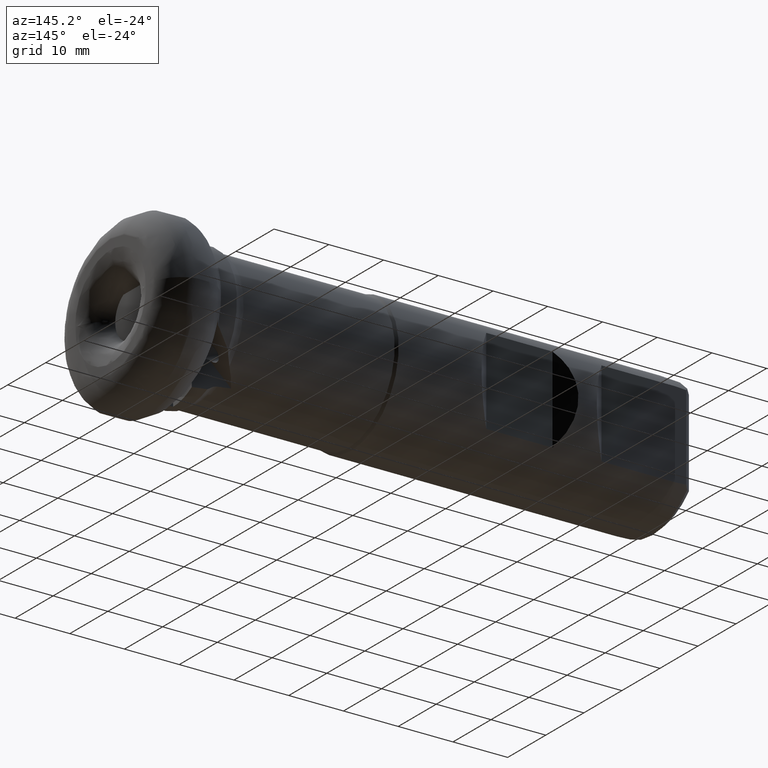
[diagram: clean part render]
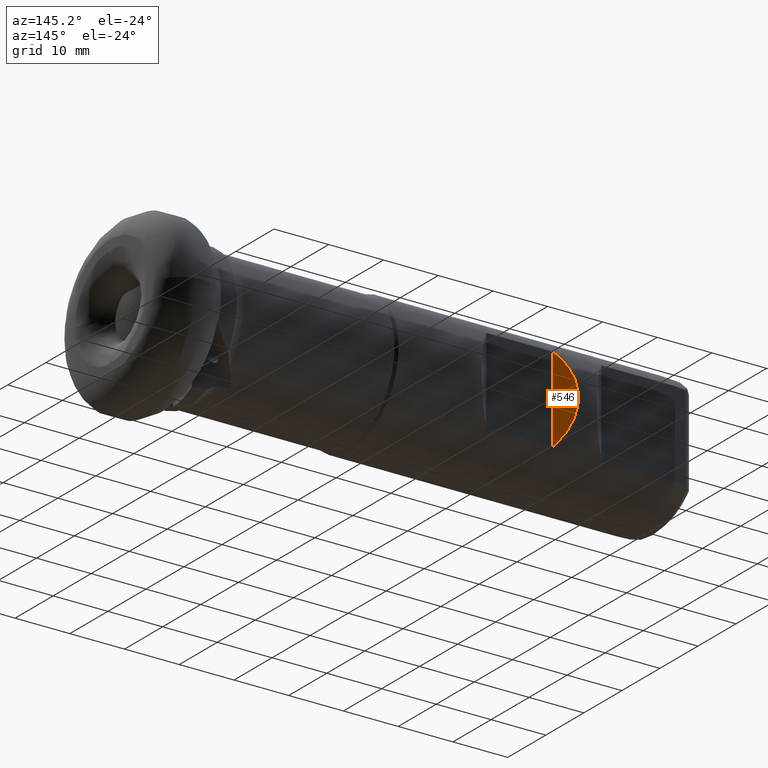
[diagram: same view with one face highlighted and labeled with its STEP entity id]
A machine part, auxiliary view. The second image highlights one B-rep face of the part: STEP entity #546.
In plain terms, the highlighted planar face has unit normal (-0.7071, -0.7071, 0).
Its self-contained STEP definition (entity closure, byte-faithful):
#29 = CARTESIAN_POINT ( 'NONE',  ( -76.69717868338568700, 13.59717868338556100, -3.089404912919587100 ) ) ;
#134 = DIRECTION ( 'NONE',  ( -0.0000000000000000000, -0.0000000000000000000, 1.000000000000000000 ) ) ;
#145 = VERTEX_POINT ( 'NONE', #2151 ) ;
#546 = ADVANCED_FACE ( 'NONE', ( #3852 ), #641, .F. ) ;
#641 = PLANE ( 'NONE',  #2102 ) ;
#818 = ORIENTED_EDGE ( 'NONE', *, *, #3215, .F. ) ;
#826 = EDGE_CURVE ( 'NONE', #145, #1124, #3632, .T. ) ;
#827 = CARTESIAN_POINT ( 'NONE',  ( -72.79999999999999700, 9.700000000000011700, -25.00000000000000000 ) ) ;
#1124 = VERTEX_POINT ( 'NONE', #2470 ) ;
#1296 = DIRECTION ( 'NONE',  ( 0.7071067811865564500, -0.7071067811865386900, 0.0000000000000000000 ) ) ;
#1342 = DIRECTION ( 'NONE',  ( -0.7071067811865386900, -0.7071067811865564500, 0.0000000000000000000 ) ) ;
#1369 = LINE ( 'NONE', #827, #4123 ) ;
#1724 = CARTESIAN_POINT ( 'NONE',  ( -72.79999999999999700, 9.700000000000011700, -7.884161337770791500 ) ) ;
#2102 = AXIS2_PLACEMENT_3D ( 'NONE', #3043, #1342, #1296 ) ;
#2151 = CARTESIAN_POINT ( 'NONE',  ( -72.79999999999999700, 9.700000000000011700, -7.884161337770791500 ) ) ;
#2470 = CARTESIAN_POINT ( 'NONE',  ( -72.79999999999999700, 9.700000000000011700, 7.884161337770777300 ) ) ;
#3007 = ORIENTED_EDGE ( 'NONE', *, *, #826, .T. ) ;
#3043 = CARTESIAN_POINT ( 'NONE',  ( -72.79999999999999700, 9.700000000000011700, -25.00000000000000000 ) ) ;
#3215 = EDGE_CURVE ( 'NONE', #145, #1124, #1369, .T. ) ;
#3271 = EDGE_LOOP ( 'NONE', ( #3007, #818 ) ) ;
#3632 =( BOUNDED_CURVE ( )  B_SPLINE_CURVE ( 3, ( #1724, #29, #4146, #4448 ),
 .UNSPECIFIED., .F., .T. ) 
 B_SPLINE_CURVE_WITH_KNOTS ( ( 4, 4 ),
 ( 2.459095336313823000, 3.824089970865762700 ),
 .UNSPECIFIED. ) 
 CURVE ( )  GEOMETRIC_REPRESENTATION_ITEM ( )  RATIONAL_B_SPLINE_CURVE ( ( 1.000000000000000000, 0.8506666666666673500, 0.8506666666666673500, 1.000000000000000000 ) ) 
 REPRESENTATION_ITEM ( '' )  );
#3852 = FACE_OUTER_BOUND ( 'NONE', #3271, .T. ) ;
#4123 = VECTOR ( 'NONE', #134, 1000.000000000000000 ) ;
#4146 = CARTESIAN_POINT ( 'NONE',  ( -76.69717868338568700, 13.59717868338556100, 3.089404912919580000 ) ) ;
#4448 = CARTESIAN_POINT ( 'NONE',  ( -72.79999999999999700, 9.700000000000011700, 7.884161337770777300 ) ) ;